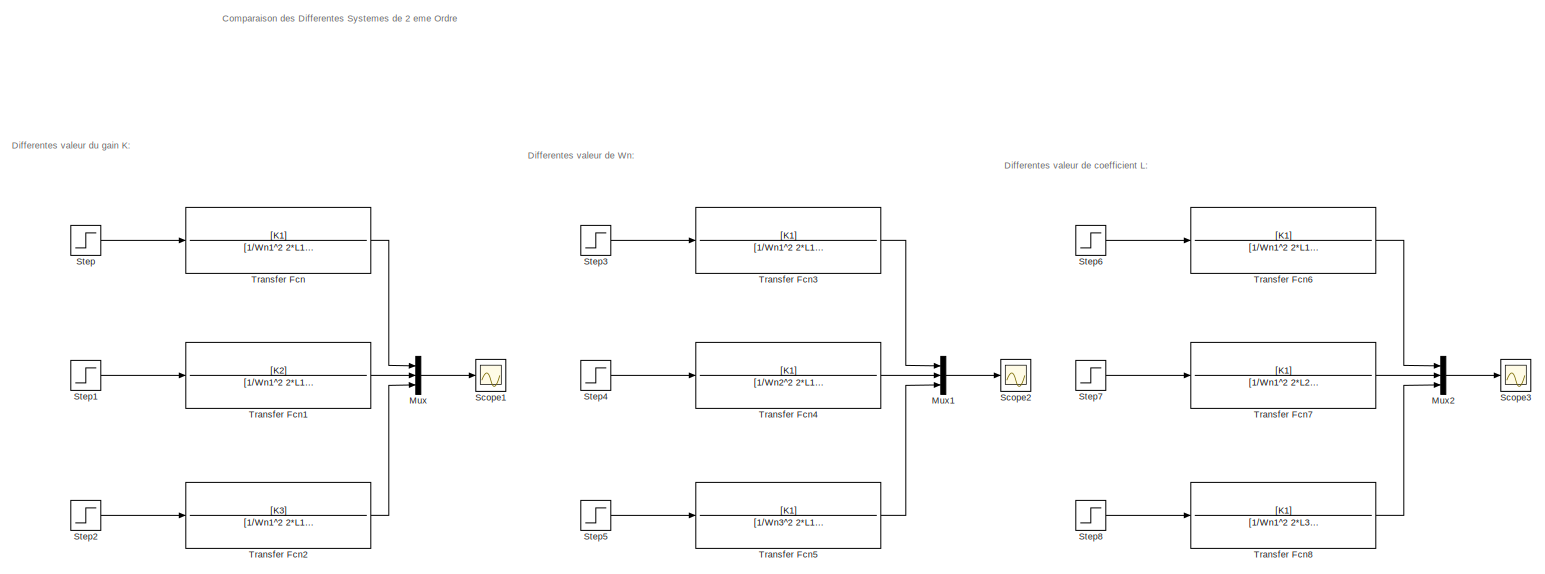
[diagram: root canvas - part 1/2, most of the canvas]
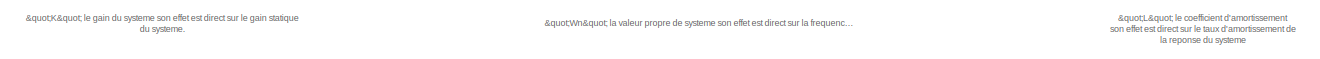
[diagram: root canvas - part 2/2, full width, bottom band]
MODEL slx_439f10aee6c5
KIND model
CONFIG AbsTol = auto
CONFIG EnableMultiTasking = off
CONFIG FixedStep = auto
CONFIG MaxStep = auto
CONFIG MinStep = auto
CONFIG RelTol = 1e-3
CONFIG SampleTimeConstraint = Unconstrained
CONFIG Solver = VariableStepAuto
CONFIG SolverName = VariableStepAuto
CONFIG StartTime = 0.0
CONFIG StopTime = 100
BLOCK [Mux] Mux
  DisplayOption = bar
  Inputs = 3
  Ports = [3, 1]
BLOCK [Mux] Mux1
  DisplayOption = bar
  Inputs = 3
  Ports = [3, 1]
BLOCK [Mux] Mux2
  DisplayOption = bar
  Inputs = 3
  Ports = [3, 1]
BLOCK [Scope] Scope1
  NumInputPorts = 1
  Ports = [1]
  ScopeSpecificationString = Simulink.scopes.TimeScopeBlockCfg('CurrentConfiguration', extmgr.ConfigurationSet(extmgr.Configuration('Core','General UI',true),extmgr.Configuration('Core','Source UI',true),extmgr.Configuration('Sources','WiredSimulink',true,'DataLoggingVariableName','ScopeData1'),extmgr.Configuration('Visuals','Time Domain',true,'SerializedDisplays',{struct('MinYLimReal','-1.90365','MaxYLimReal','17.13288','YLa...<+1436ch>
BLOCK [Scope] Scope2
  NumInputPorts = 1
  Ports = [1]
  ScopeSpecificationString = Simulink.scopes.TimeScopeBlockCfg('CurrentConfiguration', extmgr.ConfigurationSet(extmgr.Configuration('Core','General UI',true),extmgr.Configuration('Core','Source UI',true),extmgr.Configuration('Sources','WiredSimulink',true),extmgr.Configuration('Visuals','Time Domain',true,'SerializedDisplays',{struct('MinYLimReal','-0.19038','MaxYLimReal','1.71345','YLabelReal','','MinYLimMag','0.00000','MaxY...<+1417ch>
BLOCK [Scope] Scope3
  NumInputPorts = 1
  Ports = [1]
  ScopeSpecificationString = Simulink.scopes.TimeScopeBlockCfg('CurrentConfiguration', extmgr.ConfigurationSet(extmgr.Configuration('Core','General UI',true),extmgr.Configuration('Core','Source UI',true),extmgr.Configuration('Sources','WiredSimulink',true,'DataLoggingVariableName','ScopeData2'),extmgr.Configuration('Visuals','Time Domain',true,'SerializedDisplays',{struct('MinYLimReal','-0.19037','MaxYLimReal','1.71329','YLab...<+1459ch>
BLOCK [Step] Step
  SampleTime = 0
BLOCK [Step] Step1
  SampleTime = 0
BLOCK [Step] Step2
  SampleTime = 0
BLOCK [Step] Step3
  SampleTime = 0
BLOCK [Step] Step4
  SampleTime = 0
BLOCK [Step] Step5
  SampleTime = 0
BLOCK [Step] Step6
  SampleTime = 0
BLOCK [Step] Step7
  SampleTime = 0
BLOCK [Step] Step8
  SampleTime = 0
BLOCK [TransferFcn] Transfer Fcn
  Denominator = [1/Wn1^2 2*L1/Wn1 1]
  Numerator = [K1]
BLOCK [TransferFcn] Transfer Fcn1
  Denominator = [1/Wn1^2 2*L1/Wn1 1]
  Numerator = [K2]
BLOCK [TransferFcn] Transfer Fcn2
  Denominator = [1/Wn1^2 2*L1/Wn1 1]
  Numerator = [K3]
BLOCK [TransferFcn] Transfer Fcn3
  Denominator = [1/Wn1^2 2*L1/Wn1 1]
  Numerator = [K1]
BLOCK [TransferFcn] Transfer Fcn4
  Denominator = [1/Wn2^2 2*L1/Wn2 1]
  Numerator = [K1]
BLOCK [TransferFcn] Transfer Fcn5
  Denominator = [1/Wn3^2 2*L1/Wn3 1]
  Numerator = [K1]
BLOCK [TransferFcn] Transfer Fcn6
  Denominator = [1/Wn1^2 2*L1/Wn1 1]
  Numerator = [K1]
BLOCK [TransferFcn] Transfer Fcn7
  Denominator = [1/Wn1^2 2*L2/Wn1 1]
  Numerator = [K1]
BLOCK [TransferFcn] Transfer Fcn8
  Denominator = [1/Wn1^2 2*L3/Wn1 1]
  Numerator = [K1]
ANNOTATION (root): "K" le gain du systeme son effet est direct sur le gain statique du systeme.
ANNOTATION (root): "L" le coefficient d'amortissement son effet est direct sur le taux d'amortissement de la reponse du systeme
ANNOTATION (root): "Wn" la valeur propre de systeme son effet est direct sur la frequence de pseudo-pulsation de la reponse de systeme.
ANNOTATION (root): Differentes valeur de Wn:
ANNOTATION (root): Differentes valeur de coefficient L:
ANNOTATION (root): Differentes valeur du gain K:
ANNOTATION (root): Comparaison des Differentes Systemes de 2 eme Ordre
LINE Mux1:1 -> Scope2:1
LINE Mux2:1 -> Scope3:1
LINE Mux:1 -> Scope1:1
LINE Step1:1 -> Transfer Fcn1:1
LINE Step2:1 -> Transfer Fcn2:1
LINE Step3:1 -> Transfer Fcn3:1
LINE Step4:1 -> Transfer Fcn4:1
LINE Step5:1 -> Transfer Fcn5:1
LINE Step6:1 -> Transfer Fcn6:1
LINE Step7:1 -> Transfer Fcn7:1
LINE Step8:1 -> Transfer Fcn8:1
LINE Step:1 -> Transfer Fcn:1
LINE Transfer Fcn1:1 -> Mux:2
LINE Transfer Fcn2:1 -> Mux:3
LINE Transfer Fcn3:1 -> Mux1:1
LINE Transfer Fcn4:1 -> Mux1:2
LINE Transfer Fcn5:1 -> Mux1:3
LINE Transfer Fcn6:1 -> Mux2:1
LINE Transfer Fcn7:1 -> Mux2:2
LINE Transfer Fcn8:1 -> Mux2:3
LINE Transfer Fcn:1 -> Mux:1
